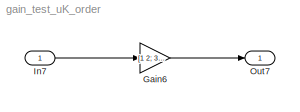
MODEL gain_test_uK_order
KIND model
BLOCK [Gain] Gain6
  Gain = [1 2; 3 4; 5 6]
  Multiplication = Matrix(u*K)
  OutDataTypeStr = Inherit: Inherit via internal rule
  ParamDataTypeStr = Inherit: Inherit via internal rule
  SID = 2
  SaturateOnIntegerOverflow = off
BLOCK [Inport] In7
  IconDisplay = Port number
  OutDataTypeStr = double
  PortDimensions = [2 3]
  SID = 1
BLOCK [Outport] Out7
  IconDisplay = Port number
  SID = 3
LINE Gain6:1 -> Out7:1
LINE In7:1 -> Gain6:1
